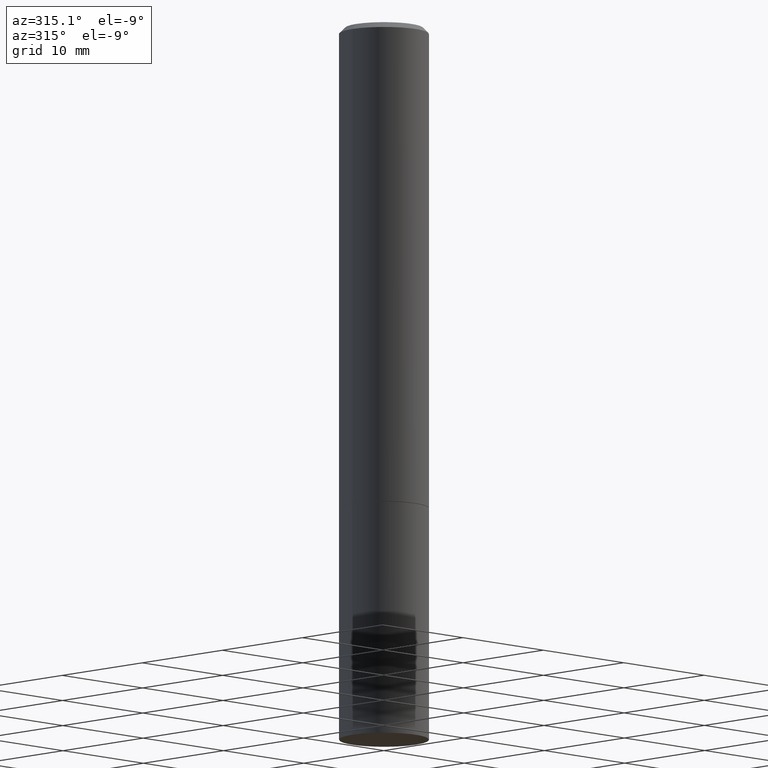
[diagram: clean part render]
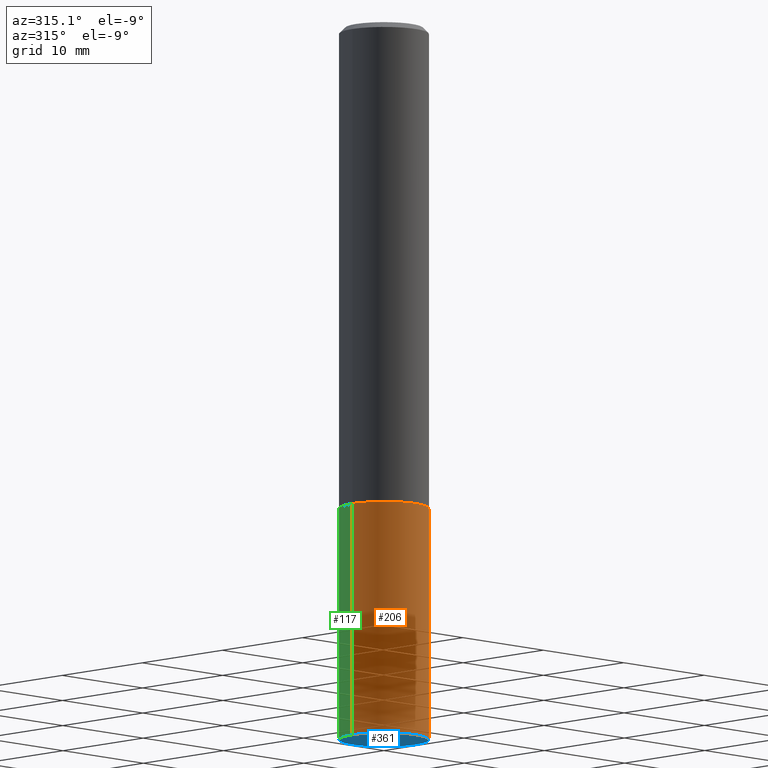
[diagram: same view with three faces highlighted in distinct colors, each labeled with its STEP entity id]
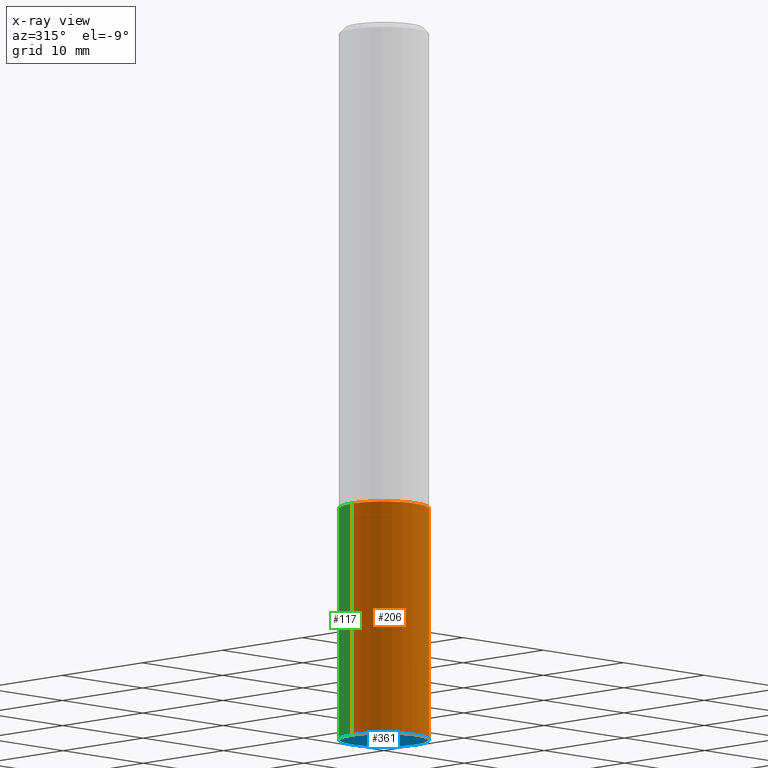
[diagram: x-ray of the same camera — body ghosted, the three highlighted faces saturated]
A machine part, auxiliary view with three faces highlighted in distinct colors.
The next image is the same camera in x-ray (body ghosted, the three faces saturated) — at least one of them is partly hidden behind the body in this view.
Their STEP definitions:

[orange] entity #206 — the highlighted cylindrical surface (partial cylindrical patch) has radius 3.9688 mm, axis along (-0, 0, 1).
#5 = CARTESIAN_POINT ( 'NONE',  ( -0.1562500000000000000, -6.200066028577678771E-15, -1.687500000000000000 ) ) ;
#16 = VERTEX_POINT ( 'NONE', #183 ) ;
#30 = CIRCLE ( 'NONE', #290, 0.1562500000000000000 ) ;
#46 = DIRECTION ( 'NONE',  ( 1.000000000000000000, -6.982962677686269077E-15, 0.000000000000000000 ) ) ;
#53 = CARTESIAN_POINT ( 'NONE',  ( -0.1562500000000000000, -6.200066028577678771E-15, -2.500000000000000000 ) ) ;
#97 = DIRECTION ( 'NONE',  ( 1.000000000000000000, -6.982962677686269077E-15, 0.000000000000000000 ) ) ;
#98 = DIRECTION ( 'NONE',  ( 1.000000000000000000, -6.982962677686266711E-15, 4.876176775795936353E-29 ) ) ;
#106 = EDGE_LOOP ( 'NONE', ( #287, #216, #335, #110 ) ) ;
#107 = LINE ( 'NONE', #337, #181 ) ;
#110 = ORIENTED_EDGE ( 'NONE', *, *, #137, .F. ) ;
#135 = DIRECTION ( 'NONE',  ( -2.445468806185136877E-29, 3.491481338843145188E-15, 1.000000000000000000 ) ) ;
#137 = EDGE_CURVE ( 'NONE', #365, #16, #153, .T. ) ;
#146 = CARTESIAN_POINT ( 'NONE',  ( -0.1562500000000000000, 1.110223024625156540E-15, -7.685836078523291160E-30 ) ) ;
#149 = EDGE_CURVE ( 'NONE', #305, #365, #249, .T. ) ;
#151 = CYLINDRICAL_SURFACE ( 'NONE', #364, 0.1562500000000000000 ) ;
#153 = CIRCLE ( 'NONE', #180, 0.1562500000000000000 ) ;
#158 = CARTESIAN_POINT ( 'NONE',  ( 4.126728610437418007E-29, -5.891874759297807259E-15, -1.687500000000000000 ) ) ;
#162 = DIRECTION ( 'NONE',  ( -2.445468806185136597E-29, 3.491481338843145583E-15, 1.000000000000000000 ) ) ;
#180 = AXIS2_PLACEMENT_3D ( 'NONE', #158, #353, #97 ) ;
#181 = VECTOR ( 'NONE', #135, 39.37007874015748143 ) ;
#183 = CARTESIAN_POINT ( 'NONE',  ( 0.1562500000000000000, -6.982962677686287221E-15, -1.687500000000000000 ) ) ;
#206 = ADVANCED_FACE ( 'NONE', ( #333 ), #151, .T. ) ;
#216 = ORIENTED_EDGE ( 'NONE', *, *, #257, .T. ) ;
#249 = LINE ( 'NONE', #146, #350 ) ;
#257 = EDGE_CURVE ( 'NONE', #305, #355, #30, .T. ) ;
#268 = DIRECTION ( 'NONE',  ( -2.445468806185136597E-29, 3.491481338843145583E-15, 1.000000000000000000 ) ) ;
#280 = EDGE_CURVE ( 'NONE', #355, #16, #107, .T. ) ;
#287 = ORIENTED_EDGE ( 'NONE', *, *, #149, .F. ) ;
#290 = AXIS2_PLACEMENT_3D ( 'NONE', #306, #162, #46 ) ;
#299 = CARTESIAN_POINT ( 'NONE',  ( 0.000000000000000000, 0.000000000000000000, 0.000000000000000000 ) ) ;
#305 = VERTEX_POINT ( 'NONE', #53 ) ;
#306 = CARTESIAN_POINT ( 'NONE',  ( 6.113672015462842613E-29, -8.728703347107864943E-15, -2.500000000000000000 ) ) ;
#333 = FACE_OUTER_BOUND ( 'NONE', #106, .T. ) ;
#335 = ORIENTED_EDGE ( 'NONE', *, *, #280, .T. ) ;
#337 = CARTESIAN_POINT ( 'NONE',  ( 0.1562500000000000000, -1.091087918388479174E-15, 7.619026212181150377E-30 ) ) ;
#347 = CARTESIAN_POINT ( 'NONE',  ( 0.1562500000000000000, -9.819791265496344905E-15, -2.500000000000000000 ) ) ;
#350 = VECTOR ( 'NONE', #362, 39.37007874015748143 ) ;
#353 = DIRECTION ( 'NONE',  ( -2.445468806185136597E-29, 3.491481338843145583E-15, 1.000000000000000000 ) ) ;
#355 = VERTEX_POINT ( 'NONE', #347 ) ;
#362 = DIRECTION ( 'NONE',  ( -2.445468806185136877E-29, 3.491481338843145188E-15, 1.000000000000000000 ) ) ;
#364 = AXIS2_PLACEMENT_3D ( 'NONE', #299, #268, #98 ) ;
#365 = VERTEX_POINT ( 'NONE', #5 ) ;

[blue] entity #361 — the highlighted planar face has unit normal (0, -0, -1).
#30 = CIRCLE ( 'NONE', #290, 0.1562500000000000000 ) ;
#31 = PLANE ( 'NONE',  #81 ) ;
#46 = DIRECTION ( 'NONE',  ( 1.000000000000000000, -6.982962677686269077E-15, 0.000000000000000000 ) ) ;
#52 = EDGE_CURVE ( 'NONE', #355, #305, #340, .T. ) ;
#53 = CARTESIAN_POINT ( 'NONE',  ( -0.1562500000000000000, -6.200066028577678771E-15, -2.500000000000000000 ) ) ;
#57 = ORIENTED_EDGE ( 'NONE', *, *, #257, .F. ) ;
#74 = DIRECTION ( 'NONE',  ( -2.445468806185136597E-29, 3.491481338843145583E-15, 1.000000000000000000 ) ) ;
#81 = AXIS2_PLACEMENT_3D ( 'NONE', #344, #205, #346 ) ;
#91 = ORIENTED_EDGE ( 'NONE', *, *, #52, .F. ) ;
#162 = DIRECTION ( 'NONE',  ( -2.445468806185136597E-29, 3.491481338843145583E-15, 1.000000000000000000 ) ) ;
#187 = DIRECTION ( 'NONE',  ( 1.000000000000000000, -6.982962677686269077E-15, 0.000000000000000000 ) ) ;
#202 = FACE_OUTER_BOUND ( 'NONE', #339, .T. ) ;
#205 = DIRECTION ( 'NONE',  ( 2.438088387897960049E-29, -3.491481338843145188E-15, -1.000000000000000000 ) ) ;
#244 = CARTESIAN_POINT ( 'NONE',  ( 6.113672015462842613E-29, -8.728703347107864943E-15, -2.500000000000000000 ) ) ;
#257 = EDGE_CURVE ( 'NONE', #305, #355, #30, .T. ) ;
#290 = AXIS2_PLACEMENT_3D ( 'NONE', #306, #162, #46 ) ;
#305 = VERTEX_POINT ( 'NONE', #53 ) ;
#306 = CARTESIAN_POINT ( 'NONE',  ( 6.113672015462842613E-29, -8.728703347107864943E-15, -2.500000000000000000 ) ) ;
#336 = AXIS2_PLACEMENT_3D ( 'NONE', #244, #74, #187 ) ;
#339 = EDGE_LOOP ( 'NONE', ( #91, #57 ) ) ;
#340 = CIRCLE ( 'NONE', #336, 0.1562500000000000000 ) ;
#344 = CARTESIAN_POINT ( 'NONE',  ( 1.091087918388540310E-15, 0.1562499999999912570, -2.500000000000000444 ) ) ;
#346 = DIRECTION ( 'NONE',  ( -1.000000000000000000, 6.982962677686265922E-15, -4.876176775795935793E-29 ) ) ;
#347 = CARTESIAN_POINT ( 'NONE',  ( 0.1562500000000000000, -9.819791265496344905E-15, -2.500000000000000000 ) ) ;
#355 = VERTEX_POINT ( 'NONE', #347 ) ;
#361 = ADVANCED_FACE ( 'NONE', ( #202 ), #31, .T. ) ;

[green] entity #117 — the highlighted cylindrical surface (partial cylindrical patch) has radius 3.9688 mm, axis along (-0, 0, 1).
#5 = CARTESIAN_POINT ( 'NONE',  ( -0.1562500000000000000, -6.200066028577678771E-15, -1.687500000000000000 ) ) ;
#13 = AXIS2_PLACEMENT_3D ( 'NONE', #220, #76, #190 ) ;
#16 = VERTEX_POINT ( 'NONE', #183 ) ;
#39 = DIRECTION ( 'NONE',  ( -2.445468806185136597E-29, 3.491481338843145583E-15, 1.000000000000000000 ) ) ;
#52 = EDGE_CURVE ( 'NONE', #355, #305, #340, .T. ) ;
#53 = CARTESIAN_POINT ( 'NONE',  ( -0.1562500000000000000, -6.200066028577678771E-15, -2.500000000000000000 ) ) ;
#74 = DIRECTION ( 'NONE',  ( -2.445468806185136597E-29, 3.491481338843145583E-15, 1.000000000000000000 ) ) ;
#76 = DIRECTION ( 'NONE',  ( -2.445468806185136597E-29, 3.491481338843145583E-15, 1.000000000000000000 ) ) ;
#95 = FACE_OUTER_BOUND ( 'NONE', #338, .T. ) ;
#107 = LINE ( 'NONE', #337, #181 ) ;
#117 = ADVANCED_FACE ( 'NONE', ( #95 ), #125, .T. ) ;
#125 = CYLINDRICAL_SURFACE ( 'NONE', #160, 0.1562500000000000000 ) ;
#135 = DIRECTION ( 'NONE',  ( -2.445468806185136877E-29, 3.491481338843145188E-15, 1.000000000000000000 ) ) ;
#146 = CARTESIAN_POINT ( 'NONE',  ( -0.1562500000000000000, 1.110223024625156540E-15, -7.685836078523291160E-30 ) ) ;
#149 = EDGE_CURVE ( 'NONE', #305, #365, #249, .T. ) ;
#160 = AXIS2_PLACEMENT_3D ( 'NONE', #211, #39, #269 ) ;
#166 = ORIENTED_EDGE ( 'NONE', *, *, #149, .T. ) ;
#181 = VECTOR ( 'NONE', #135, 39.37007874015748143 ) ;
#183 = CARTESIAN_POINT ( 'NONE',  ( 0.1562500000000000000, -6.982962677686287221E-15, -1.687500000000000000 ) ) ;
#187 = DIRECTION ( 'NONE',  ( 1.000000000000000000, -6.982962677686269077E-15, 0.000000000000000000 ) ) ;
#190 = DIRECTION ( 'NONE',  ( 1.000000000000000000, -6.982962677686269077E-15, 0.000000000000000000 ) ) ;
#203 = CIRCLE ( 'NONE', #13, 0.1562500000000000000 ) ;
#211 = CARTESIAN_POINT ( 'NONE',  ( 0.000000000000000000, 0.000000000000000000, 0.000000000000000000 ) ) ;
#220 = CARTESIAN_POINT ( 'NONE',  ( 4.126728610437418007E-29, -5.891874759297807259E-15, -1.687500000000000000 ) ) ;
#222 = ORIENTED_EDGE ( 'NONE', *, *, #263, .F. ) ;
#244 = CARTESIAN_POINT ( 'NONE',  ( 6.113672015462842613E-29, -8.728703347107864943E-15, -2.500000000000000000 ) ) ;
#249 = LINE ( 'NONE', #146, #350 ) ;
#252 = ORIENTED_EDGE ( 'NONE', *, *, #280, .F. ) ;
#263 = EDGE_CURVE ( 'NONE', #16, #365, #203, .T. ) ;
#269 = DIRECTION ( 'NONE',  ( 1.000000000000000000, -6.982962677686266711E-15, 4.876176775795936353E-29 ) ) ;
#280 = EDGE_CURVE ( 'NONE', #355, #16, #107, .T. ) ;
#305 = VERTEX_POINT ( 'NONE', #53 ) ;
#312 = ORIENTED_EDGE ( 'NONE', *, *, #52, .T. ) ;
#336 = AXIS2_PLACEMENT_3D ( 'NONE', #244, #74, #187 ) ;
#337 = CARTESIAN_POINT ( 'NONE',  ( 0.1562500000000000000, -1.091087918388479174E-15, 7.619026212181150377E-30 ) ) ;
#338 = EDGE_LOOP ( 'NONE', ( #312, #166, #222, #252 ) ) ;
#340 = CIRCLE ( 'NONE', #336, 0.1562500000000000000 ) ;
#347 = CARTESIAN_POINT ( 'NONE',  ( 0.1562500000000000000, -9.819791265496344905E-15, -2.500000000000000000 ) ) ;
#350 = VECTOR ( 'NONE', #362, 39.37007874015748143 ) ;
#355 = VERTEX_POINT ( 'NONE', #347 ) ;
#362 = DIRECTION ( 'NONE',  ( -2.445468806185136877E-29, 3.491481338843145188E-15, 1.000000000000000000 ) ) ;
#365 = VERTEX_POINT ( 'NONE', #5 ) ;